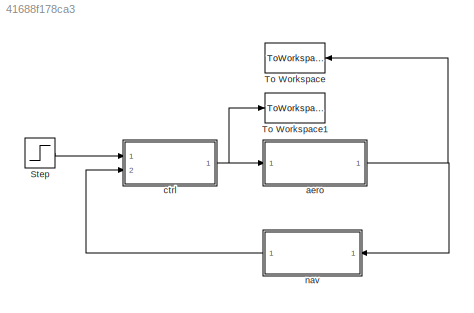
MODEL slx_41688f178ca3
KIND model
CONFIG AbsTol = auto
CONFIG FixedStep = 0.05
CONFIG MaxStep = auto
CONFIG MinStep = auto
CONFIG RelTol = 1e-3
CONFIG SampleTimeConstraint = Unconstrained
CONFIG Solver = VariableStepAuto
CONFIG SolverMode = Auto
CONFIG SolverName = VariableStepAuto
CONFIG StartTime = 0.0
CONFIG StopTime = inf
BLOCK [Step] Step
  After = 5
  SampleTime = 0
BLOCK [ToWorkspace] To Workspace
  FixptAsFi = on
  MaxDataPoints = inf
  Ports = [1]
  SampleTime = -1
  Save2DSignal = 3-D array (concatenate along third dimension)
  SaveFormat = Timeseries
  VariableName = y
BLOCK [ToWorkspace] To Workspace1
  FixptAsFi = on
  MaxDataPoints = inf
  Ports = [1]
  SampleTime = -1
  Save2DSignal = 3-D array (concatenate along third dimension)
  SaveFormat = Timeseries
  VariableName = u
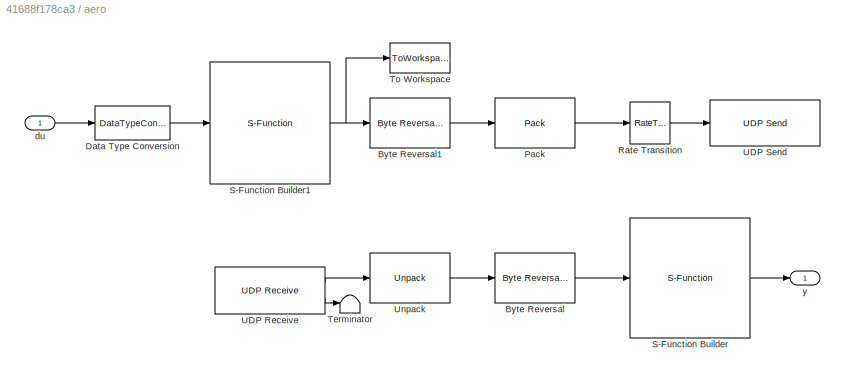
BLOCK [SubSystem] aero
  Ports = [1, 1]
  RequestExecContextInheritance = off
  Variant = off
BLOCK [Reference] aero/Byte Reversal  REF=xpcutilitieslib/Byte Reversal 
  Ports = [1, 1]
  SourceBlock = xpcutilitieslib/Byte Reversal
  SourceType = xpcreverseendian
BLOCK [Reference] aero/Byte Reversal1  REF=xpcutilitieslib/Byte Reversal 
  Ports = [1, 1]
  SourceBlock = xpcutilitieslib/Byte Reversal
  SourceType = xpcreverseendian
BLOCK [DataTypeConversion] aero/Data Type Conversion
  OutDataTypeStr = single
  RndMeth = Floor
  SaturateOnIntegerOverflow = off
BLOCK [Reference] aero/Pack  REF=xpcobsoletelib/Utilities/Pack 
  Ports = [1, 1]
  SourceBlock = xpcobsoletelib/Utilities/Pack
  SourceType = xpcany2byte
BLOCK [RateTransition] aero/Rate Transition
  OutPortSampleTime = 0.05
BLOCK [S-Function] aero/S-Function Builder
  CopyFcn = set_param(gcbh,'LinkStatus','none')
  EnableBusSupport = off
  FunctionName = xplane
  InitFcn = try, set_param(gcb,'FunctionName','xplane'), end
  OpenFcn = sfunctionwizard(gcbh)
  Ports = [1, 1]
  PreSaveFcn = try, set_param(gcb,'FunctionName','xplane'), end
  SFunctionDeploymentMode = off
  SFunctionModules = xplane_wrapper
BLOCK [S-Function] aero/S-Function Builder1
  CopyFcn = set_param(gcbh,'LinkStatus','none')
  EnableBusSupport = off
  FunctionName = matlab
  InitFcn = try, set_param(gcb,'FunctionName','matlab'), end
  OpenFcn = sfunctionwizard(gcbh)
  Ports = [1, 1]
  PreSaveFcn = try, set_param(gcb,'FunctionName','matlab'), end
  SFunctionDeploymentMode = off
  SFunctionModules = matlab_wrapper
BLOCK [Terminator] aero/Terminator
BLOCK [ToWorkspace] aero/To Workspace
  FixptAsFi = on
  MaxDataPoints = inf
  Ports = [1]
  SampleTime = -1
  Save2DSignal = 3-D array (concatenate along third dimension)
  SaveFormat = Timeseries
  VariableName = Pkt
BLOCK [Reference] aero/UDP Receive  REF=instrumentlib/UDP Receive
  Ports = [0, 2]
  SourceBlock = instrumentlib/UDP Receive
  SourceType = UDP Receive
BLOCK [Reference] aero/UDP Send  REF=instrumentlib/UDP Send
  Ports = [1]
  SourceBlock = instrumentlib/UDP Send
  SourceType = UDP Send
BLOCK [Reference] aero/Unpack  REF=xpcobsoletelib/Utilities/Unpack 
  Ports = [1, 1]
  SourceBlock = xpcobsoletelib/Utilities/Unpack
  SourceType = xpcbyte2any
BLOCK [Inport] aero/du
  IconDisplay = Port number
BLOCK [Outport] aero/y 
  IconDisplay = Port number
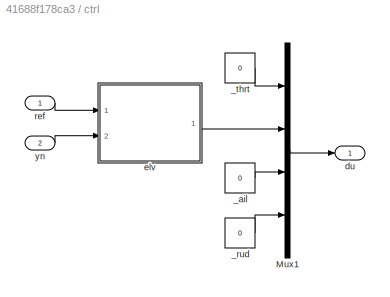
BLOCK [SubSystem] ctrl
  Ports = [2, 1]
  RequestExecContextInheritance = off
  Variant = off
BLOCK [Mux] ctrl/Mux1
  DisplayOption = bar
  Ports = [4, 1]
BLOCK [Constant] ctrl/_ail
  Value = 0
BLOCK [Constant] ctrl/_rud
  Value = 0
BLOCK [Constant] ctrl/_thrt
  Value = 0
BLOCK [Outport] ctrl/du
  IconDisplay = Port number
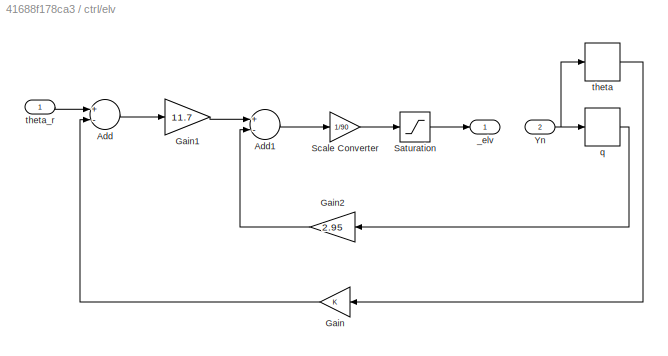
BLOCK [SubSystem] ctrl/elv
  Ports = [2, 1]
  RequestExecContextInheritance = off
  Variant = off
BLOCK [Sum] ctrl/elv/Add
  InputSameDT = off
  Inputs = +-
  OutDataTypeStr = Inherit: Inherit via internal rule
  Ports = [2, 1]
  SaturateOnIntegerOverflow = off
BLOCK [Sum] ctrl/elv/Add1
  InputSameDT = off
  Inputs = +-
  OutDataTypeStr = Inherit: Inherit via internal rule
  Ports = [2, 1]
  SaturateOnIntegerOverflow = off
BLOCK [Gain] ctrl/elv/Gain
  OutDataTypeStr = Inherit: Inherit via internal rule
  ParamDataTypeStr = Inherit: Inherit via internal rule
  SaturateOnIntegerOverflow = off
BLOCK [Gain] ctrl/elv/Gain1
  Gain = 11.7
  OutDataTypeStr = Inherit: Inherit via internal rule
  ParamDataTypeStr = Inherit: Inherit via internal rule
  SaturateOnIntegerOverflow = off
BLOCK [Gain] ctrl/elv/Gain2
  Gain = 2.95
  OutDataTypeStr = Inherit: Inherit via internal rule
  ParamDataTypeStr = Inherit: Inherit via internal rule
  SaturateOnIntegerOverflow = off
BLOCK [Saturate] ctrl/elv/Saturation
  InputPortMap = u0
  LowerLimit = -1.0
  Ports = [1, 1]
  UpperLimit = 1.0
BLOCK [Gain] ctrl/elv/Scale Converter
  Gain = 1/90
  OutDataTypeStr = Inherit: Inherit via internal rule
  ParamDataTypeStr = Inherit: Inherit via internal rule
  SaturateOnIntegerOverflow = off
BLOCK [Inport] ctrl/elv/Yn
  IconDisplay = Port number
  Port = 2
BLOCK [Outport] ctrl/elv/_elv
  IconDisplay = Port number
BLOCK [Selector] ctrl/elv/q
  IndexOptions = Index vector (dialog)
  Indices = [3]
  InputPortWidth = 5
  OutputSizes = 1
  Ports = [1, 1]
BLOCK [Selector] ctrl/elv/theta
  IndexOptions = Index vector (dialog)
  Indices = [4]
  InputPortWidth = 5
  OutputSizes = 1
  Ports = [1, 1]
BLOCK [Inport] ctrl/elv/theta_r
  IconDisplay = Port number
BLOCK [Inport] ctrl/ref
  IconDisplay = Port number
BLOCK [Inport] ctrl/yn
  IconDisplay = Port number
  Port = 2
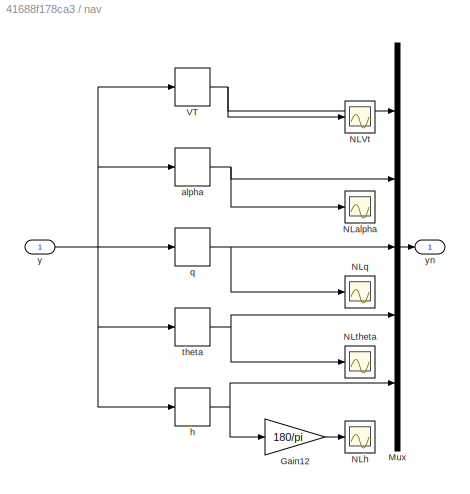
BLOCK [SubSystem] nav
  Ports = [1, 1]
  RequestExecContextInheritance = off
  Variant = off
BLOCK [Gain] nav/Gain12
  Gain = 180/pi
  OutDataTypeStr = Inherit: Inherit via internal rule
  ParamDataTypeStr = Inherit: Inherit via internal rule
  SaturateOnIntegerOverflow = off
BLOCK [Mux] nav/Mux
  DisplayOption = bar
  Inputs = 5
  Ports = [5, 1]
BLOCK [Scope] nav/NLVt
  Ports = [1]
  ScopeSpecificationString = Simulink.scopes.TimeScopeBlockCfg('CurrentConfiguration', extmgr.ConfigurationSet(extmgr.Configuration('Core','General UI',true),extmgr.Configuration('Core','Source UI',true),extmgr.Configuration('Sources','WiredSimulink',true,'DataLoggingVariableName','ScopeData1'),extmgr.Configuration('Visuals','Time Domain',true,'SerializedDisplays',{struct('MinYLimReal','278.56927','MaxYLimReal','284.71128','Y...<+1375ch>
BLOCK [Scope] nav/NLalpha
  Ports = [1]
  ScopeSpecificationString = C++SS(StrPVP('SaveName','ScopeData4'),StrPVP('LimitDataPoints','on'),StrPVP('DataFormat','Array'),StrPVP('Decimation','1'),StrPVP('BlockParamSampleInput','off'),StrPVP('SaveName','ScopeData2'))
BLOCK [Scope] nav/NLh
  Ports = [1]
  ScopeSpecificationString = C++SS(StrPVP('SaveName','ScopeData3'),StrPVP('LimitDataPoints','on'),StrPVP('DataFormat','Array'),StrPVP('Decimation','1'),StrPVP('BlockParamSampleInput','off'))
BLOCK [Scope] nav/NLq
  Ports = [1]
  ScopeSpecificationString = C++SS(StrPVP('Location','[1, 49, 1441, 899]'),StrPVP('Open','off'),StrPVP('ZoomMode','yonly'),MxPVP('AxesTitles',24,'struct(''axes1'',''%<SignalLabel>'')'),MxPVP('ScopeGraphics',28,'struct(''FigureColor'',''[0.5 0.5 0.5]'',''AxesColor'',''[0 0 0]'',''AxesTickColor'',''[1 1 1]'',''LineColors'',''[1 1 0;1 0 1;0 1 1;1 0 0;0 1 0;0 0 1]'',''LineStyles'',''-|-|-|-|-|-'',''LineWidths'',''[0.5 0.5 0.5 0.5...<+410ch>
BLOCK [Scope] nav/NLtheta
  Ports = [1]
  ScopeSpecificationString = C++SS(StrPVP('SaveName','ScopeData'),StrPVP('LimitDataPoints','on'),StrPVP('DataFormat','Array'),StrPVP('Decimation','1'),StrPVP('BlockParamSampleInput','off'))
BLOCK [Selector] nav/VT
  IndexOptions = Index vector (dialog)
  Indices = [1]
  InputPortWidth = 12
  OutputSizes = 1
  Ports = [1, 1]
BLOCK [Selector] nav/alpha
  IndexOptions = Index vector (dialog)
  Indices = [2]
  InputPortWidth = 12
  OutputSizes = 1
  Ports = [1, 1]
BLOCK [Selector] nav/h
  IndexOptions = Index vector (dialog)
  Indices = [12]
  InputPortWidth = 12
  OutputSizes = 1
  Ports = [1, 1]
BLOCK [Selector] nav/q
  IndexOptions = Index vector (dialog)
  Indices = [5]
  InputPortWidth = 12
  OutputSizes = 1
  Ports = [1, 1]
BLOCK [Selector] nav/theta
  IndexOptions = Index vector (dialog)
  Indices = [8]
  InputPortWidth = 12
  OutputSizes = 1
  Ports = [1, 1]
BLOCK [Inport] nav/y
  IconDisplay = Port number
BLOCK [Outport] nav/yn
  IconDisplay = Port number
LINE Step:1 -> ctrl:1
LINE aero/Byte Reversal1:1 -> aero/Pack:1
LINE aero/Byte Reversal:1 -> aero/S-Function Builder:1
LINE aero/Data Type Conversion:1 -> aero/S-Function Builder1:1
LINE aero/Pack:1 -> aero/Rate Transition:1
LINE aero/Rate Transition:1 -> aero/UDP Send:1
NET aero/S-Function Builder1:1 -> aero/Byte Reversal1:1, aero/To Workspace:1
LINE aero/S-Function Builder:1 -> aero/y :1
LINE aero/UDP Receive:1 -> aero/Unpack:1
LINE aero/UDP Receive:2 -> aero/Terminator:1
LINE aero/Unpack:1 -> aero/Byte Reversal:1
LINE aero/du:1 -> aero/Data Type Conversion:1
NET aero:1 -> To Workspace:1, nav:1
LINE ctrl/Mux1:1 -> ctrl/du:1
LINE ctrl/_ail:1 -> ctrl/Mux1:3
LINE ctrl/_rud:1 -> ctrl/Mux1:4
LINE ctrl/_thrt:1 -> ctrl/Mux1:1
LINE ctrl/elv/Add1:1 -> ctrl/elv/Scale Converter:1
LINE ctrl/elv/Add:1 -> ctrl/elv/Gain1:1
LINE ctrl/elv/Gain1:1 -> ctrl/elv/Add1:1
LINE ctrl/elv/Gain2:1 -> ctrl/elv/Add1:2
LINE ctrl/elv/Gain:1 -> ctrl/elv/Add:2
LINE ctrl/elv/Saturation:1 -> ctrl/elv/_elv:1
LINE ctrl/elv/Scale Converter:1 -> ctrl/elv/Saturation:1
NET ctrl/elv/Yn:1 -> ctrl/elv/q:1, ctrl/elv/theta:1
LINE ctrl/elv/q:1 -> ctrl/elv/Gain2:1
LINE ctrl/elv/theta:1 -> ctrl/elv/Gain:1
LINE ctrl/elv/theta_r:1 -> ctrl/elv/Add:1
LINE ctrl/elv:1 -> ctrl/Mux1:2
LINE ctrl/ref:1 -> ctrl/elv:1
LINE ctrl/yn:1 -> ctrl/elv:2
NET ctrl:1 -> To Workspace1:1, aero:1
LINE nav/Gain12:1 -> nav/NLh:1
LINE nav/Mux:1 -> nav/yn:1
NET nav/VT:1 -> nav/Mux:1, nav/NLVt:1
NET nav/alpha:1 -> nav/Mux:2, nav/NLalpha:1
NET nav/h:1 -> nav/Gain12:1, nav/Mux:5
NET nav/q:1 -> nav/Mux:3, nav/NLq:1
NET nav/theta:1 -> nav/Mux:4, nav/NLtheta:1
NET nav/y:1 -> nav/VT:1, nav/alpha:1, nav/h:1, nav/q:1, nav/theta:1
LINE nav:1 -> ctrl:2
note: NET lines group one-source signal fan-out (src -> all destinations, sorted); 1:1 wires keep LINE
